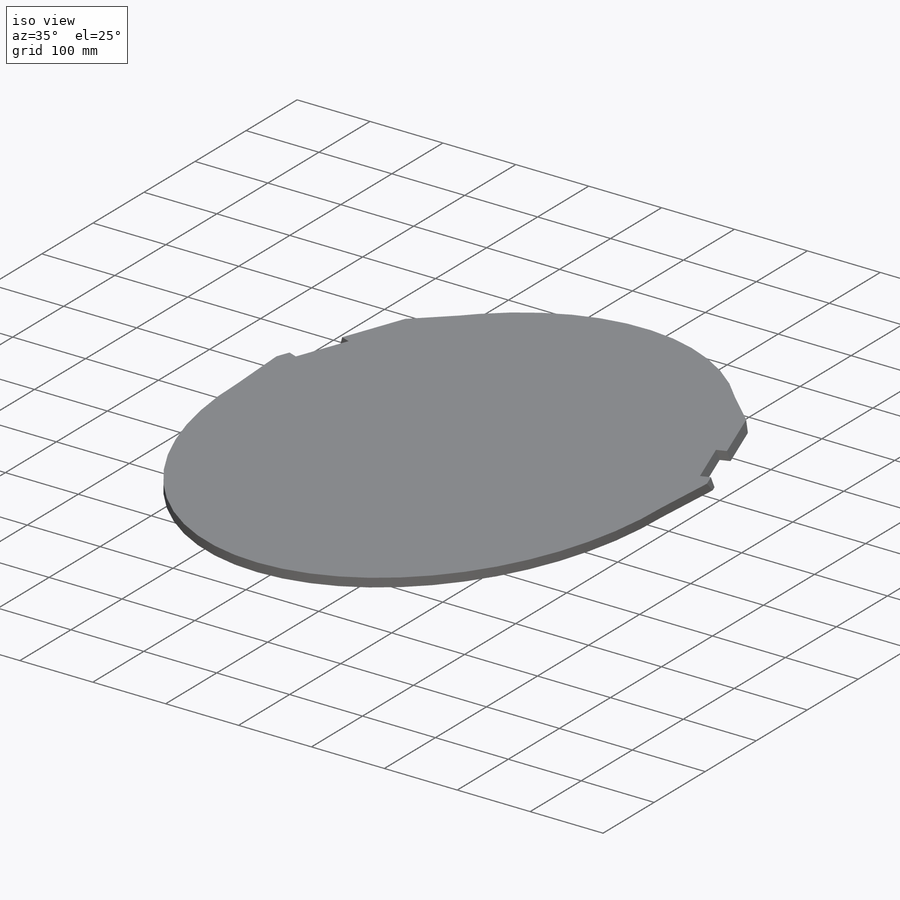
[diagram: iso view]
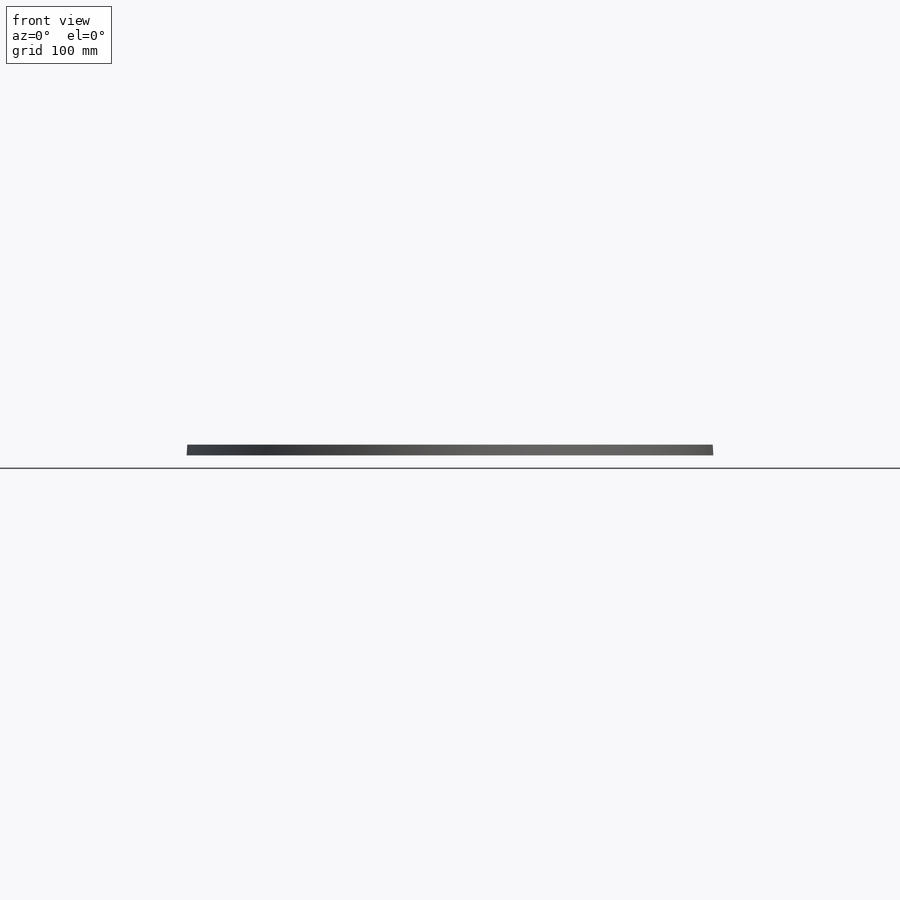
[diagram: front view]
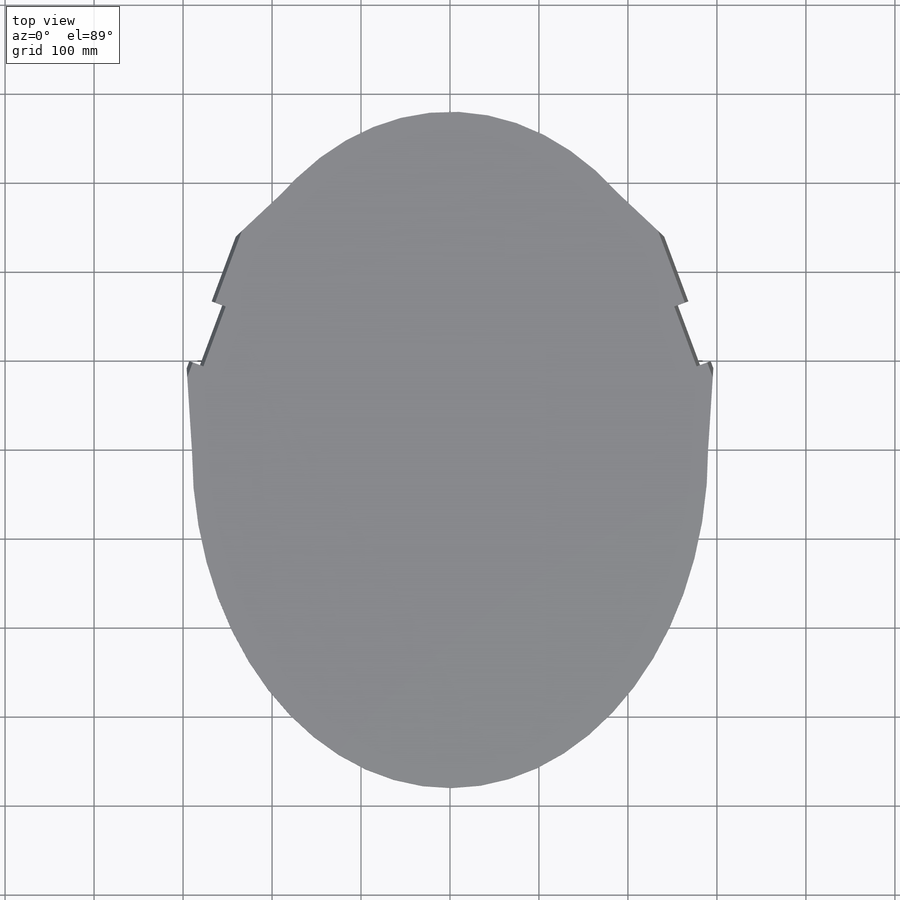
[diagram: top view]
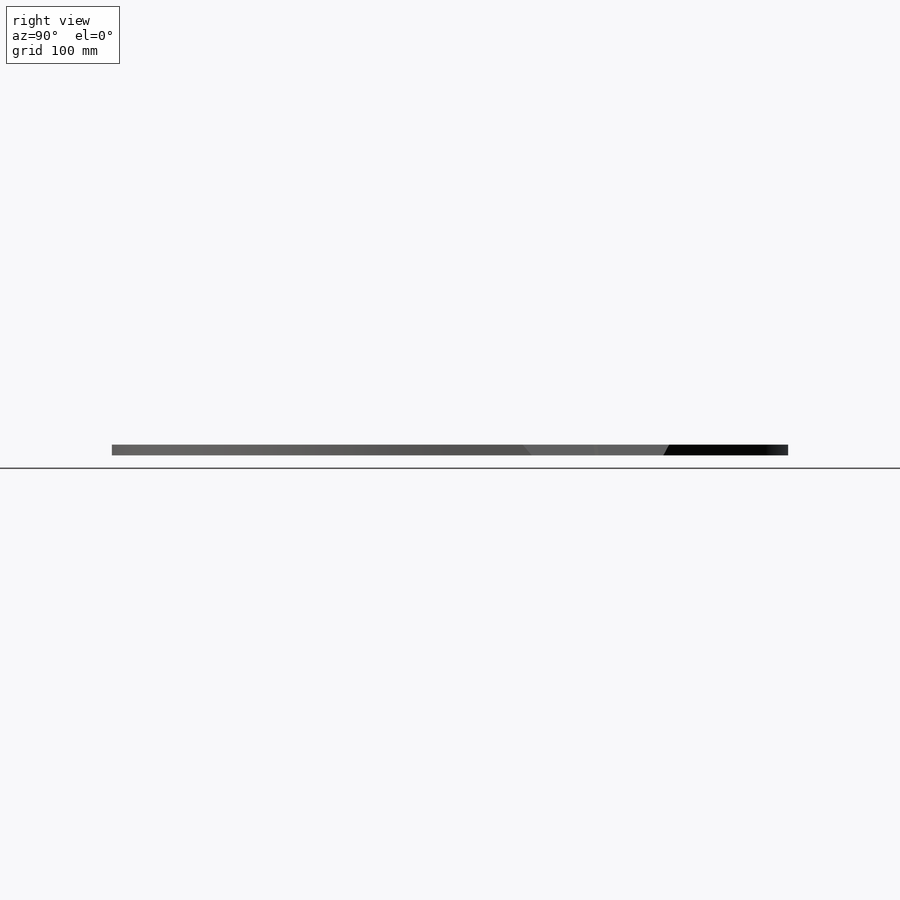
[diagram: right view]
SOLIDWORKS PART (.sldprt)
format: sldprt  version: not decoded by parser v0  size: 399,360 bytes
history: native  units: mm
features: sketch x4, extrude x2, cut_extrude x2, mirror x2, material x1, plane x1 (+12 scaffold rows collapsed)
feature tree (24):
  scaffold x12  (default folders/planes/origin — collapsed)
  material  "Material <not specified>"
  sketch  "Sketch1"  dims[D1=500.0mm D2=710.0mm D3=580.0mm D4=760.0mm]
  extrude  "Boss-Extrude1"  Depth=12mm
  sketch  "Sketch2"  dims[c1.D1=10.0mm c1.D2=10.0mm c2.D1=0.0mm]
  extrude  "Boss-Extrude2"  Depth=12mm
  plane  "Plane1"
  sketch  "Sketch4"
  cut_extrude  "Cut-Extrude1"  Depth=12mm
  mirror  "Mirror1"
  sketch  "Sketch8"
  cut_extrude  "Cut-Extrude2"  [1 undecoded]
  mirror  "Mirror2"
decode coverage: 5 of 10 modeling features carry decoded parameters
note: 1 parameter value undecoded
note: suppression state not decoded; provenance and decode notes live in map.json
